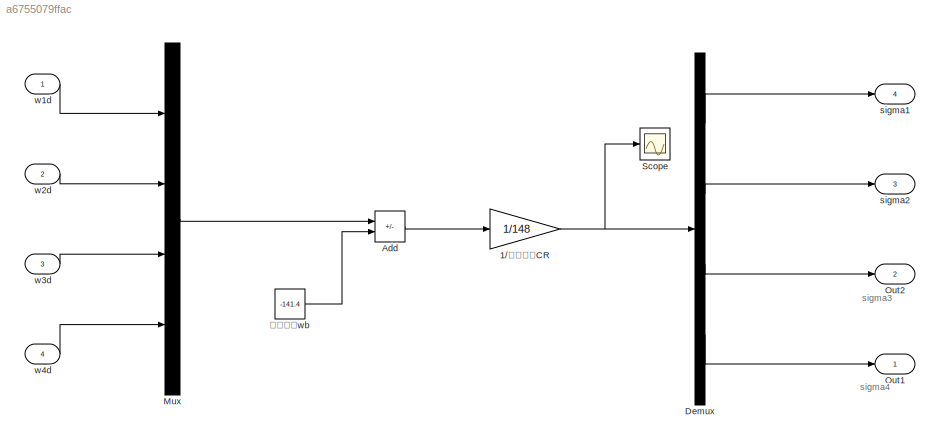
MODEL slx_a6755079ffac
KIND model
CONFIG AbsTol = auto
CONFIG EnableMultiTasking = off
CONFIG FixedStep = auto
CONFIG MaxStep = auto
CONFIG MinStep = auto
CONFIG RelTol = 1e-3
CONFIG SampleTimeConstraint = Unconstrained
CONFIG SolverName = VariableStepAuto
CONFIG StartTime = 0.0
CONFIG StopTime = 10.0
BLOCK [Gain] 1//油门参数CR
  Gain = 1/148
BLOCK [Sum] Add
  IconShape = rectangular
  Inputs = +-
  Ports = [2, 1]
BLOCK [Demux] Demux
  Ports = [1, 4]
BLOCK [Mux] Mux
  DisplayOption = bar
  Ports = [4, 1]
BLOCK [Outport] Out1
BLOCK [Outport] Out2
  Port = 2
BLOCK [Scope] Scope
  Floating = off
  NumInputPorts = 1
  Ports = [1]
  ScopeSpecificationString = Simulink.scopes.TimeScopeBlockCfg('CurrentConfiguration', extmgr.ConfigurationSet(extmgr.Configuration('Core','General UI',true),extmgr.Configuration('Core','Source UI',true),extmgr.Configuration('Sources','WiredSimulink',true),extmgr.Configuration('Visuals','Time Domain',true,'SerializedDisplays',{struct('MinYLimReal','0.85541','MaxYLimReal','1.05541','YLabelReal','','MinYLimMag','0.85541','MaxYL...<+1367ch>
BLOCK [Outport] sigma1
  Port = 4
BLOCK [Outport] sigma2
  Port = 3
BLOCK [Inport] w1d
BLOCK [Inport] w2d
  Port = 2
BLOCK [Inport] w3d
  Port = 3
BLOCK [Inport] w4d
  Port = 4
BLOCK [Constant] 油门参数wb
  Value = -141.4
ANNOTATION (root): sigma3
ANNOTATION (root): sigma4
NET 1//油门参数CR:1 -> Demux:1, Scope:1
LINE Add:1 -> 1//油门参数CR:1
LINE Demux:1 -> sigma1:1
LINE Demux:2 -> sigma2:1
LINE Demux:3 -> Out2:1
LINE Demux:4 -> Out1:1
LINE Mux:1 -> Add:1
LINE w1d:1 -> Mux:1
LINE w2d:1 -> Mux:2
LINE w3d:1 -> Mux:3
LINE w4d:1 -> Mux:4
LINE 油门参数wb:1 -> Add:2
note: NET lines group one-source signal fan-out (src -> all destinations, sorted); 1:1 wires keep LINE
